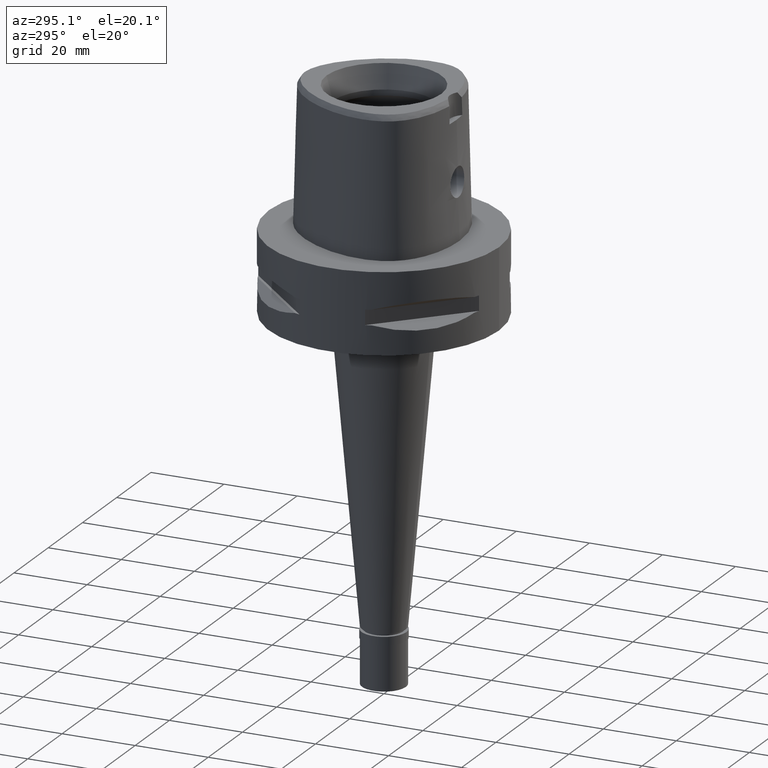
[diagram: clean part render]
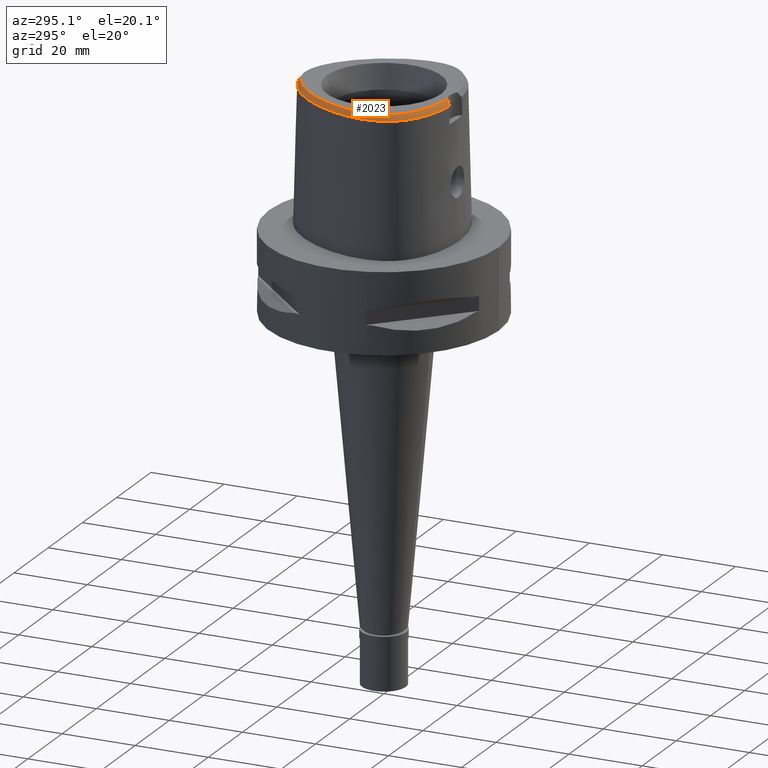
[diagram: same view with one face highlighted and labeled with its STEP entity id]
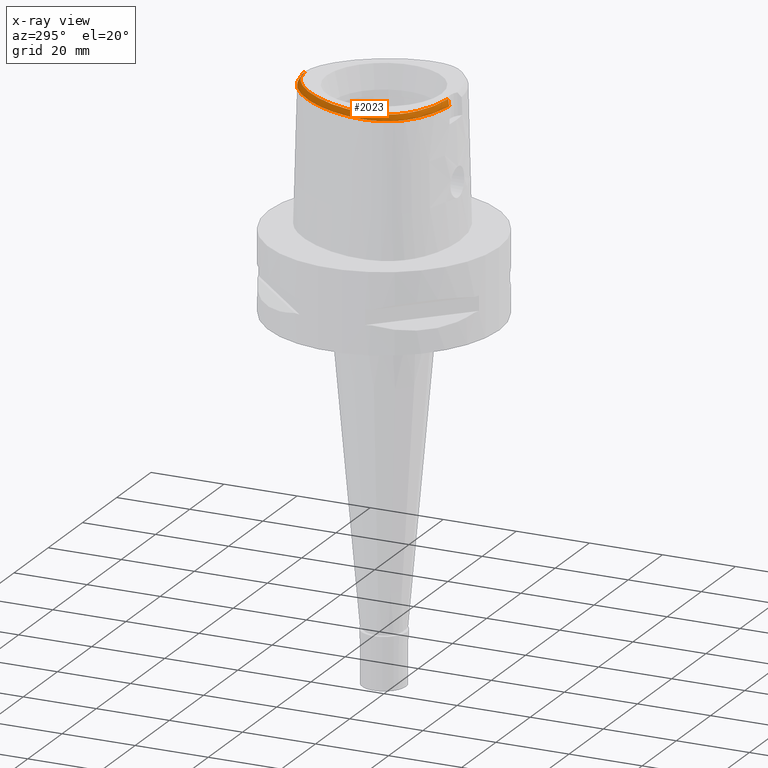
[diagram: x-ray of the same camera — body ghosted, the highlighted face saturated]
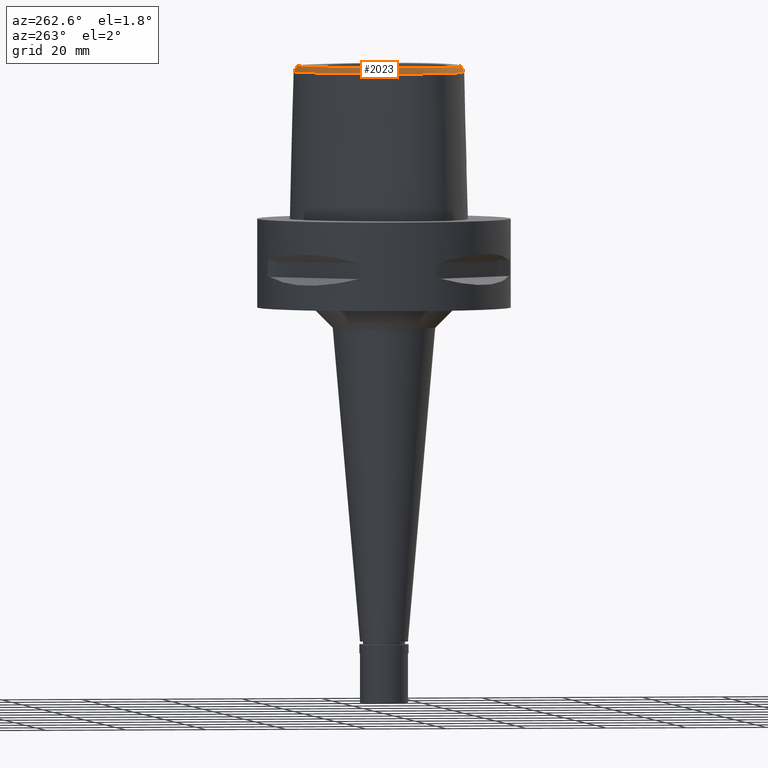
[diagram: same view with one face highlighted and labeled with its STEP entity id]
A machine part, auxiliary view. The second image highlights one B-rep face of the part: STEP entity #2023.
The next image is the same camera in x-ray: the body ghosted, the highlighted face saturated — about 0% of this face is hidden behind the body in this view.
A second angle (auxiliary view) of the same face is appended — the face is thin or edge-on in the first view.
In plain terms, the highlighted face is a freeform B-spline surface patch.
Its self-contained STEP definition (entity closure, byte-faithful):
#14 = CARTESIAN_POINT ( 'NONE',  ( -20.02675011674000416, -8.617982196456999588, 37.56878038597999847 ) ) ;
#37 = CARTESIAN_POINT ( 'NONE',  ( -19.86774351649000181, -10.92586949346000047, 36.33730872462999884 ) ) ;
#42 = CARTESIAN_POINT ( 'NONE',  ( 0.6289482029996000811, 22.28997476057999805, 36.95304439485000358 ) ) ;
#65 = CARTESIAN_POINT ( 'NONE',  ( -14.94067184435999884, -14.73642292221000005, 38.18451597091999616 ) ) ;
#90 = CARTESIAN_POINT ( 'NONE',  ( -18.22776533188999792, -11.52555474592000095, 38.18451611263000700 ) ) ;
#111 = CARTESIAN_POINT ( 'NONE',  ( -20.18507091242999962, -10.27080217816999941, 36.33730920690000232 ) ) ;
#125 = CARTESIAN_POINT ( 'NONE',  ( -20.09619618740940084, -10.23243843867939340, 36.52186244848000740 ) ) ;
#127 = CARTESIAN_POINT ( 'NONE',  ( -17.45119705494190754, -12.68365517585671043, 38.00000000000304823 ) ) ;
#136 = CARTESIAN_POINT ( 'NONE',  ( -16.28815286081999858, -13.68256091387000062, 38.18451610198000168 ) ) ;
#153 = CARTESIAN_POINT ( 'NONE',  ( -20.40060226222547257, -4.311417605381054230, 38.00000000000147793 ) ) ;
#166 = CARTESIAN_POINT ( 'NONE',  ( -3.777279559280000143, 22.07397702624999880, 36.33730948142999750 ) ) ;
#186 = CARTESIAN_POINT ( 'NONE',  ( -7.796513101705000004, 19.30717071940000196, 37.56878040368000171 ) ) ;
#198 = CARTESIAN_POINT ( 'NONE',  ( -2.682279906006999948, -18.78035848609999903, 38.00000000000000000 ) ) ;
#203 = CARTESIAN_POINT ( 'NONE',  ( -2.266354038267999638, -18.70221909909999880, 38.18451597308000345 ) ) ;
#207 = CARTESIAN_POINT ( 'NONE',  ( -9.687043812886001248, 17.90231720853999775, 37.56878079712999607 ) ) ;
#224 = CARTESIAN_POINT ( 'NONE',  ( -9.106433529538000116, -18.24421251244999809, 36.95304738533000233 ) ) ;
#228 = CARTESIAN_POINT ( 'NONE',  ( -9.165489689892000413, 19.23659463607999953, 36.33730848116000089 ) ) ;
#251 = CARTESIAN_POINT ( 'NONE',  ( -5.162650465159000390, 20.76744500909000024, 37.56878052391000011 ) ) ;
#279 = CARTESIAN_POINT ( 'NONE',  ( -20.61877110236000021, -5.294987516542999373, 37.56878065549000212 ) ) ;
#304 = CARTESIAN_POINT ( 'NONE',  ( -19.85526247840000025, 3.052097962454000335, 36.95304603679000621 ) ) ;
#324 = CARTESIAN_POINT ( 'NONE',  ( -21.00225135283999833, -3.250479583054000088, 36.95304468321999991 ) ) ;
#356 = CARTESIAN_POINT ( 'NONE',  ( -19.03637577663999991, 4.343604012840000195, 37.56878023039000425 ) ) ;
#362 = CARTESIAN_POINT ( 'NONE',  ( -7.655222869372381389, 19.09452359226542839, 37.99999999999960210 ) ) ;
#385 = CARTESIAN_POINT ( 'NONE',  ( -20.55906090346999804, -2.152374905768000168, 37.56878027646999385 ) ) ;
#407 = CARTESIAN_POINT ( 'NONE',  ( -14.15283256488999974, -15.25210397049000122, 38.18451602454999971 ) ) ;
#411 = CARTESIAN_POINT ( 'NONE',  ( 0.4008181513137999974, 21.93696204017000184, 37.56878039124000423 ) ) ;
#413 = CARTESIAN_POINT ( 'NONE',  ( -2.735698246183100313, 21.34559102902258232, 38.00000000000549960 ) ) ;
#432 = CARTESIAN_POINT ( 'NONE',  ( -15.35635954876999953, -15.33546644513000068, 36.95304532526000685 ) ) ;
#437 = CARTESIAN_POINT ( 'NONE',  ( -0.02532183057577000115, 21.58405771607999668, 38.18451604354000040 ) ) ;
#462 = CARTESIAN_POINT ( 'NONE',  ( -18.39632534895999783, -12.52233836712999882, 36.95304509468000020 ) ) ;
#468 = CARTESIAN_POINT ( 'NONE',  ( -1.446070426911000073, 22.58791698093000022, 36.33730842036999320 ) ) ;
#483 = CARTESIAN_POINT ( 'NONE',  ( -1.709898365991000259E-11, 22.56201468012000078, 36.52186680743999858 ) ) ;
#488 = CARTESIAN_POINT ( 'NONE',  ( -10.37740510969000063, -17.83102580118000091, 36.95304636610000415 ) ) ;
#500 = CARTESIAN_POINT ( 'NONE',  ( -2.376843896517655264, 22.39422508473721507, 36.52186244848000740 ) ) ;
#502 = CARTESIAN_POINT ( 'NONE',  ( -15.00295592774214803, -14.82617991125727563, 38.00000000000061817 ) ) ;
#508 = CARTESIAN_POINT ( 'NONE',  ( -13.28256881731999961, -15.75541261661999748, 38.18451608756000581 ) ) ;
#513 = CARTESIAN_POINT ( 'NONE',  ( -0.7115904893532000175, 22.65643130755000101, 36.33730877266000192 ) ) ;
#525 = CARTESIAN_POINT ( 'NONE',  ( -10.17136073855662204, -17.24644253469881505, 37.99999999999920419 ) ) ;
#537 = ORIENTED_EDGE ( 'NONE', *, *, #3183, .F. ) ;
#541 = CARTESIAN_POINT ( 'NONE',  ( -15.45953200273000050, 11.39847745766999942, 37.56878065731999783 ) ) ;
#557 = CARTESIAN_POINT ( 'NONE',  ( -4.691536587948999859, -18.45908343680000030, 38.18451607663000402 ) ) ;
#562 = CARTESIAN_POINT ( 'NONE',  ( -16.00433262329999806, 9.852643034111000730, 38.18451607808000148 ) ) ;
#572 = CARTESIAN_POINT ( 'NONE',  ( -20.27898581532152278, -6.181921586189995210, 38.00000000000031974 ) ) ;
#582 = CARTESIAN_POINT ( 'NONE',  ( -4.215658479161999317, 20.76450822006999886, 38.18451608323000102 ) ) ;
#593 = CARTESIAN_POINT ( 'NONE',  ( -19.55745547456383449, -11.29150218116444471, 36.52186244848000740 ) ) ;
#596 = CARTESIAN_POINT ( 'NONE',  ( -20.30498420086961886, -2.177378896258027829, 38.00000000000496669 ) ) ;
#606 = CARTESIAN_POINT ( 'NONE',  ( -11.15460772716000015, 17.59209845178000009, 36.33731309594000436 ) ) ;
#621 = CARTESIAN_POINT ( 'NONE',  ( -8.578220530113664921, 18.44656747109426576, 37.99999999999955236 ) ) ;
#635 = CARTESIAN_POINT ( 'NONE',  ( -10.66208797857999890, 17.05454986079000079, 37.56878145039999595 ) ) ;
#661 = CARTESIAN_POINT ( 'NONE',  ( -19.53853592720999899, 1.493083719539999965, 38.18451559889000180 ) ) ;
#672 = CARTESIAN_POINT ( 'NONE',  ( -3.637738201363999835, -19.56971413236999879, 36.52186244848000030 ) ) ;
#684 = CARTESIAN_POINT ( 'NONE',  ( -19.83485565970000053, 0.2024166197235000020, 38.18451568417000175 ) ) ;
#714 = CARTESIAN_POINT ( 'NONE',  ( -19.89160911299999768, 1.583749715944999803, 37.56878151751000416 ) ) ;
#737 = CARTESIAN_POINT ( 'NONE',  ( -18.49281944676999956, 7.522270715400999563, 36.33731006739999714 ) ) ;
#742 = CARTESIAN_POINT ( 'NONE',  ( -3.475593359606999682E-11, 21.68728795390000030, 38.00000000000000000 ) ) ;
#765 = CARTESIAN_POINT ( 'NONE',  ( -16.94264144185999754, 10.41425996445999935, 36.33730903685999891 ) ) ;
#796 = CARTESIAN_POINT ( 'NONE',  ( -17.62923874555000125, -13.92538932617999947, 36.33730892563999504 ) ) ;
#820 = CARTESIAN_POINT ( 'NONE',  ( -16.85949181368999916, -13.14831067806999876, 38.18451609040999983 ) ) ;
#845 = CARTESIAN_POINT ( 'NONE',  ( -17.91313027996000073, -13.09711318699999971, 36.95304474130999495 ) ) ;
#850 = CARTESIAN_POINT ( 'NONE',  ( -1.310091734630000060, 21.50257447207999917, 38.18451614649000447 ) ) ;
#876 = CARTESIAN_POINT ( 'NONE',  ( -15.65059932293999800, -14.21235990975000085, 38.18451606413000121 ) ) ;
#892 = CARTESIAN_POINT ( 'NONE',  ( -4.467522189394197873, -19.48130287050580733, 36.52186244848000740 ) ) ;
#899 = CARTESIAN_POINT ( 'NONE',  ( -17.36978564376000023, -12.61078706780999958, 38.18451607384000113 ) ) ;
#913 = CARTESIAN_POINT ( 'NONE',  ( -15.71788912668889004, -14.29843101566080676, 37.99999999999270983 ) ) ;
#918 = CARTESIAN_POINT ( 'NONE',  ( -6.167725899783000010, -18.21104073861000217, 38.18451610019999976 ) ) ;
#934 = CARTESIAN_POINT ( 'NONE',  ( -21.07430010673008880, -0.4408303445193489933, 36.52186244848000740 ) ) ;
#936 = CARTESIAN_POINT ( 'NONE',  ( -19.94188961899395807, 0.2242544969876888727, 37.99999999999960920 ) ) ;
#943 = CARTESIAN_POINT ( 'NONE',  ( -2.340175740112999669, -19.79288029884999744, 36.33730998296000081 ) ) ;
#950 = CARTESIAN_POINT ( 'NONE',  ( -15.76311249015000371, 11.60024433661999943, 36.95304534766999893 ) ) ;
#961 = CARTESIAN_POINT ( 'NONE',  ( -19.28591707036773784, -9.869682450886939407, 37.99999999999823785 ) ) ;
#966 = CARTESIAN_POINT ( 'NONE',  ( -2.290961272215999767, -19.06577283234999953, 37.56878064304000020 ) ) ;
#970 = CARTESIAN_POINT ( 'NONE',  ( -16.62987183566999860, 10.22705432100999978, 36.95304471725999917 ) ) ;
#988 = CARTESIAN_POINT ( 'NONE',  ( -3.448139676035999912, 21.03090601481999755, 38.18451602873000184 ) ) ;
#995 = CARTESIAN_POINT ( 'NONE',  ( -2.682279906006999948, -18.78035848609999903, 38.00000000000000000 ) ) ;
#998 = B_SPLINE_CURVE_WITH_KNOTS ( 'NONE', 3,
 ( #198, #4811, #2089, #1737, #1380, #1291, #3198, #525, #3269, #3660, #4394, #3241, #502, #913, #3220, #3288, #127, #3617, #2034, #3597, #2904, #961, #2489, #2823, #2506, #2443, #572, #3968, #153, #4038, #596, #4745, #936, #1311, #4436, #2843, #2884, #2110, #4768, #4371, #2471, #3995, #4790, #1359, #4412, #4952, #1121, #621, #362, #4065, #3455, #1776, #4641, #3859, #413, #4834, #1495, #1945, #2155, #742 ),
 .UNSPECIFIED., .F., .F.,
 ( 4, 1, 1, 1, 1, 1, 1, 1, 1, 1, 1, 1, 1, 1, 1, 1, 1, 1, 1, 1, 1, 1, 1, 1, 1, 1, 1, 1, 1, 1, 1, 1, 1, 1, 1, 1, 1, 1, 1, 1, 1, 1, 1, 1, 1, 1, 1, 1, 1, 1, 1, 1, 1, 1, 1, 1, 1, 4 ),
 ( 0.0000000000000000000, 0.005420919554200098744, 0.02318126027639999531, 0.04094160099879995407, 0.05870194172099996166, 0.07646228244330000035, 0.09422262316550000794, 0.1119829638877999356, 0.1297433046099999432, 0.1475036453321999508, 0.1652639860544999895, 0.1830243267768000281, 0.2007846674991000668, 0.2185450082212999634, 0.2363053489436000021, 0.2540656896658000097, 0.2718260303881000484, 0.2895863711103000560, 0.3073467118325999836, 0.3251070525547999912, 0.3428673932771000299, 0.3606277339994000686, 0.3783880747216000762, 0.3961484154438998928, 0.4139087561661000114, 0.4316690968884000501, 0.4494294376106000577, 0.4671897783328999854, 0.4849501190552000240, 0.5027104597774000316, 0.5204708004996999593, 0.5382311412219000779, 0.5559914819442000056, 0.5737518226664000132, 0.5915121633886999408, 0.6092725041108999484, 0.6270328448331999871, 0.6447931855555000258, 0.6625535262777000334, 0.6803138669999999610, 0.6980742077221999686, 0.7158345484445000073, 0.7335948891667000149, 0.7513552298890000536, 0.7691155706112000612, 0.7868759113336000199, 0.8046362520558000275, 0.8223965927780999552, 0.8401569335002999628, 0.8579172742224999704, 0.8756776149448000091, 0.8934379556670000166, 0.9111982963893099363, 0.9289586371115600150, 0.9467189778338299666, 0.9644793185560800453, 0.9822396592783400049, 1.000000000000000000 ),
 .UNSPECIFIED. ) ;
#1008 = CARTESIAN_POINT ( 'NONE',  ( -4.846286384608999853, -19.54163353081000309, 36.33730904987999821 ) ) ;
#1015 = CARTESIAN_POINT ( 'NONE',  ( -14.25602107928999907, 12.48290860538000047, 38.18451599888999937 ) ) ;
#1040 = CARTESIAN_POINT ( 'NONE',  ( -17.11147581288999930, 8.638424120443000120, 37.56878049479000481 ) ) ;
#1064 = CARTESIAN_POINT ( 'NONE',  ( -21.34638171082999847, -5.342155950168000267, 36.33731003096999501 ) ) ;
#1088 = CARTESIAN_POINT ( 'NONE',  ( -20.25496579812000064, -5.271403299730999414, 38.18451596775000212 ) ) ;
#1116 = VERTEX_POINT ( 'NONE', #4243 ) ;
#1118 = CARTESIAN_POINT ( 'NONE',  ( -20.04339159833000039, -7.004779408297000742, 38.18451610098000515 ) ) ;
#1121 = CARTESIAN_POINT ( 'NONE',  ( -9.524337278001938856, 17.70558492630402725, 37.99999999999589306 ) ) ;
#1141 = CARTESIAN_POINT ( 'NONE',  ( -19.67816131302000215, -8.511125492947000382, 38.18451608308000544 ) ) ;
#1169 = CARTESIAN_POINT ( 'NONE',  ( -19.20622906095000104, -11.35704442103999945, 36.95304483048000321 ) ) ;
#1174 = CARTESIAN_POINT ( 'NONE',  ( -3.637738201363999835, -19.56971413236999879, 36.52186244848000030 ) ) ;
#1200 = CARTESIAN_POINT ( 'NONE',  ( -14.53447828968000088, -15.87337238872999912, 36.95304502092999854 ) ) ;
#1224 = CARTESIAN_POINT ( 'NONE',  ( -19.51911299842000247, -9.973713021282000213, 37.56878044176999509 ) ) ;
#1226 = CARTESIAN_POINT ( 'NONE',  ( 0.5885283275144000958, 21.56237285516000313, 38.18451613489000351 ) ) ;
#1249 = CARTESIAN_POINT ( 'NONE',  ( -12.32452952721000017, -16.24233026961999826, 38.18451610107000249 ) ) ;
#1278 = CARTESIAN_POINT ( 'NONE',  ( -18.89444140915999881, -11.16800349480999976, 37.56878044430000330 ) ) ;
#1282 = CARTESIAN_POINT ( 'NONE',  ( -0.02770009181525000252, 22.67783618535000301, 36.33730934802999712 ) ) ;
#1291 = CARTESIAN_POINT ( 'NONE',  ( -7.599370508970504368, -18.01010694911206400, 38.00000000000024158 ) ) ;
#1302 = CARTESIAN_POINT ( 'NONE',  ( 0.4278957466941000209, 22.66533756051999760, 36.33730901205999686 ) ) ;
#1310 = CARTESIAN_POINT ( 'NONE',  ( -3.637738201363999835, -19.56971413236999879, 36.52186244848000030 ) ) ;
#1311 = CARTESIAN_POINT ( 'NONE',  ( -19.64434054693262865, 1.520253387635620346, 37.99999999999277378 ) ) ;
#1324 = CARTESIAN_POINT ( 'NONE',  ( -13.17448266286000091, 15.54791473446999994, 36.33730990623000423 ) ) ;
#1334 = CARTESIAN_POINT ( 'NONE',  ( -17.27359245833669377, 9.972912913898941412, 36.52186244848000740 ) ) ;
#1344 = CARTESIAN_POINT ( 'NONE',  ( -6.305547216494999496, -18.92693807178999776, 36.95304459167999056 ) ) ;
#1350 = CARTESIAN_POINT ( 'NONE',  ( -13.31954637369999972, 13.69384002444999915, 38.18451613796000288 ) ) ;
#1359 = CARTESIAN_POINT ( 'NONE',  ( -12.44116897271302058, 14.89128547409752912, 38.00000000000346034 ) ) ;
#1370 = CARTESIAN_POINT ( 'NONE',  ( -6.345974903775999820, 21.00668178508000139, 36.33730966571999943 ) ) ;
#1380 = CARTESIAN_POINT ( 'NONE',  ( -6.188376196366293769, -18.31830638231481245, 37.99999999999499778 ) ) ;
#1391 = CARTESIAN_POINT ( 'NONE',  ( -2.886817212813999944, 21.94682555607999674, 36.95304508022999812 ) ) ;
#1415 = CARTESIAN_POINT ( 'NONE',  ( -7.074171754842000226, 20.18857126524999757, 36.95304470812999398 ) ) ;
#1439 = CARTESIAN_POINT ( 'NONE',  ( -17.43274724349999971, 8.810631904323999564, 36.95304495307000536 ) ) ;
#1460 = CARTESIAN_POINT ( 'NONE',  ( -20.05211925655999750, -1.026048686198000048, 38.18451602241000131 ) ) ;
#1488 = CARTESIAN_POINT ( 'NONE',  ( -21.02045118696999992, -4.317202866415999374, 36.95304481289000620 ) ) ;
#1495 = CARTESIAN_POINT ( 'NONE',  ( -1.323674540694070645, 21.61098849315821724, 38.00000000000159162 ) ) ;
#1517 = CARTESIAN_POINT ( 'NONE',  ( -20.58669112056999850, -7.955873371742000266, 36.95304462263000289 ) ) ;
#1541 = CARTESIAN_POINT ( 'NONE',  ( -20.37533892045000172, -8.724838899966998795, 36.95304468887999860 ) ) ;
#1570 = CARTESIAN_POINT ( 'NONE',  ( -19.51801671275000061, -11.54608534727000091, 36.33730921666000313 ) ) ;
#1598 = CARTESIAN_POINT ( 'NONE',  ( -11.41502885936999867, -17.04407600737999928, 37.56878032552000235 ) ) ;
#1601 = CARTESIAN_POINT ( 'NONE',  ( -0.6430528350362999523, 21.56473394456000392, 38.18451610739000301 ) ) ;
#1625 = CARTESIAN_POINT ( 'NONE',  ( -18.18480259805999921, -13.34027624660000022, 36.33730907505000118 ) ) ;
#1650 = CARTESIAN_POINT ( 'NONE',  ( -17.37265643493000056, -13.66636311014999983, 36.95304464722999427 ) ) ;
#1656 = FACE_OUTER_BOUND ( 'NONE', #3503, .T. ) ;
#1674 = CARTESIAN_POINT ( 'NONE',  ( -14.72530115208000012, -16.18400659783999984, 36.33730951911999796 ) ) ;
#1690 = CARTESIAN_POINT ( 'NONE',  ( -20.67704215115907473, -8.734985316449373371, 36.52186244848000740 ) ) ;
#1701 = CARTESIAN_POINT ( 'NONE',  ( -5.460880318711000214, 21.43281461068000127, 36.33730952362999744 ) ) ;
#1725 = CARTESIAN_POINT ( 'NONE',  ( -7.998260510379001431, 19.61080817651999908, 36.95304473186000394 ) ) ;
#1737 = CARTESIAN_POINT ( 'NONE',  ( -4.706994425064723764, -18.56721852572553644, 38.00000000000257216 ) ) ;
#1743 = CARTESIAN_POINT ( 'NONE',  ( -7.746079046130000201, -18.61230806486999967, 36.95304660629000182 ) ) ;
#1751 = CARTESIAN_POINT ( 'NONE',  ( -4.475283853647000321, 21.44588580165000025, 36.95304468801000297 ) ) ;
#1768 = CARTESIAN_POINT ( 'NONE',  ( -12.63135418743999949, 15.06158254962999976, 37.56878062313999322 ) ) ;
#1776 = CARTESIAN_POINT ( 'NONE',  ( -5.058220461389586475, 20.53445508814830234, 37.99999999999654676 ) ) ;
#1788 = CARTESIAN_POINT ( 'NONE',  ( -2.975693348475999755, 22.30042380111000000, 36.33730961329000309 ) ) ;
#1813 = CARTESIAN_POINT ( 'NONE',  ( -17.75401867412000101, 8.982839688204999007, 36.33730941134999171 ) ) ;
#1842 = CARTESIAN_POINT ( 'NONE',  ( -20.92185538336999784, -2.116671869510000192, 36.95304442300000147 ) ) ;
#1865 = CARTESIAN_POINT ( 'NONE',  ( -20.98257640658999890, -5.318571733355000219, 36.95304534323000212 ) ) ;
#1891 = CARTESIAN_POINT ( 'NONE',  ( -19.87801058345000271, -7.784172258536999678, 38.18451609475000197 ) ) ;
#1922 = CARTESIAN_POINT ( 'NONE',  ( -18.81457497261000000, 5.910995720565000333, 36.95304491785000067 ) ) ;
#1943 = CARTESIAN_POINT ( 'NONE',  ( -20.12981641206000205, -9.445478659415998735, 36.95304499952000299 ) ) ;
#1945 = CARTESIAN_POINT ( 'NONE',  ( -0.6498990081535668262, 21.67378274708581287, 37.99999999999869260 ) ) ;
#1964 = CARTESIAN_POINT ( 'NONE',  ( -12.79301852780999837, -17.23055219409000216, 36.33730882959000041 ) ) ;
#1968 = CARTESIAN_POINT ( 'NONE',  ( -0.02690733806876000056, 22.31324336225999971, 36.95304491319999585 ) ) ;
#1996 = CARTESIAN_POINT ( 'NONE',  ( -19.54462228230000065, -10.75693248910999955, 36.95304452066000067 ) ) ;
#2001 = CARTESIAN_POINT ( 'NONE',  ( -2.064220249234000271, 21.75375259345999979, 37.56878038868000402 ) ) ;
#2019 = CARTESIAN_POINT ( 'NONE',  ( -15.87514741396999973, -14.49958176875999882, 37.56878043022999947 ) ) ;
#2023 = ADVANCED_FACE ( 'NONE', ( #1656 ), #3251, .F. ) ;
#2032 = CARTESIAN_POINT ( 'NONE',  ( -16.39211280191441489, -14.95758113318704652, 36.52186244848000740 ) ) ;
#2034 = CARTESIAN_POINT ( 'NONE',  ( -18.31748213707268746, -11.58791794388078067, 37.99999999999749889 ) ) ;
#2042 = CARTESIAN_POINT ( 'NONE',  ( -11.27635179948000044, -16.70694117596999817, 38.18451610894000225 ) ) ;
#2076 = CARTESIAN_POINT ( 'NONE',  ( -2.198999323874000211, 22.47039607780000026, 36.33730900220999871 ) ) ;
#2087 = CARTESIAN_POINT ( 'NONE',  ( -7.300578999876284669, -19.07170748891975265, 36.52186244848000740 ) ) ;
#2089 = CARTESIAN_POINT ( 'NONE',  ( -3.522896839653986589, -18.70811514173706058, 38.00000000000088107 ) ) ;
#2094 = CARTESIAN_POINT ( 'NONE',  ( -4.743119853501999827, -18.81993346814000034, 37.56878040104999883 ) ) ;
#2099 = CARTESIAN_POINT ( 'NONE',  ( -2.797941077152000133, 21.59322731105000059, 37.56878054717000026 ) ) ;
#2110 = CARTESIAN_POINT ( 'NONE',  ( -17.60426951086655478, 7.098774535281628495, 37.99999999999333511 ) ) ;
#2115 = CARTESIAN_POINT ( 'NONE',  ( -7.659796773679000026, -18.25814134938000066, 37.56878117571999809 ) ) ;
#2122 = CARTESIAN_POINT ( 'NONE',  ( -8.948009362102000708, 18.94402799276000238, 36.95304436735000309 ) ) ;
#2129 = CARTESIAN_POINT ( 'NONE',  ( -21.14970188364185333, -6.717195958887213436, 36.52186244848000740 ) ) ;
#2146 = CARTESIAN_POINT ( 'NONE',  ( -5.013535538383999679, 20.43476020829999840, 38.18451602404999790 ) ) ;
#2155 = CARTESIAN_POINT ( 'NONE',  ( -0.2181979014509072279, 21.68728795389177222, 37.99999999999901945 ) ) ;
#2157 = CARTESIAN_POINT ( 'NONE',  ( -2.682279906006999948, -18.78035848609999903, 38.00000000000000000 ) ) ;
#2167 = CARTESIAN_POINT ( 'NONE',  ( -14.84335704184999827, 12.91479436242000034, 36.95304516652999638 ) ) ;
#2189 = CARTESIAN_POINT ( 'NONE',  ( -20.54920671724000059, 0.3481639210567000209, 36.95304695229000203 ) ) ;
#2203 = CARTESIAN_POINT ( 'NONE',  ( -3.014271304879253766, -18.99139391534837173, 37.59976690302464419 ) ) ;
#2216 = CARTESIAN_POINT ( 'NONE',  ( -20.90638224601000061, 0.4210375717233000303, 36.33731258633999772 ) ) ;
#2221 = EDGE_CURVE ( 'NONE', #2639, #2689, #998, .T. ) ;
#2239 = CARTESIAN_POINT ( 'NONE',  ( -20.17053621135000085, -6.168705337529999611, 38.18451602836000092 ) ) ;
#2256 = B_SPLINE_CURVE_WITH_KNOTS ( 'NONE', 3,
 ( #2157, #2203, #4438, #672 ),
 .UNSPECIFIED., .F., .F.,
 ( 4, 4 ),
 ( 0.0000000000000000000, 1.000000000000000000 ),
 .UNSPECIFIED. ) ;
#2264 = CARTESIAN_POINT ( 'NONE',  ( -18.47843640201000071, 5.769986140440999556, 37.56878048027999739 ) ) ;
#2292 = CARTESIAN_POINT ( 'NONE',  ( -20.89433536628999732, -6.256911372971999619, 36.95304499934000120 ) ) ;
#2321 = CARTESIAN_POINT ( 'NONE',  ( -16.76982717806000167, -14.22999593724999912, 36.95304458165999506 ) ) ;
#2343 = CARTESIAN_POINT ( 'NONE',  ( -16.52899001944000190, -13.95627842556000076, 37.56878034182000192 ) ) ;
#2347 = CARTESIAN_POINT ( 'NONE',  ( 0.6491581407422000183, 22.65377571329000261, 36.33730852483000007 ) ) ;
#2372 = CARTESIAN_POINT ( 'NONE',  ( -17.11607412431000341, -13.40733689410999929, 37.56878036882000060 ) ) ;
#2375 = CARTESIAN_POINT ( 'NONE',  ( -1.355417965390000257, 21.86435530836999774, 37.56878023777999687 ) ) ;
#2401 = VERTEX_POINT ( 'NONE', #1174 ) ;
#2403 = CARTESIAN_POINT ( 'NONE',  ( -10.13504734495000115, -17.14341520066000157, 38.18451578748000230 ) ) ;
#2420 = CARTESIAN_POINT ( 'NONE',  ( -10.91891098964903506, -18.03046406390872392, 36.52186244848000740 ) ) ;
#2429 = CARTESIAN_POINT ( 'NONE',  ( -12.48069252740999957, -16.57173757778000223, 37.56878034390999943 ) ) ;
#2443 = CARTESIAN_POINT ( 'NONE',  ( -20.15090095364636369, -7.024227649787396999, 37.99999999999884182 ) ) ;
#2449 = CARTESIAN_POINT ( 'NONE',  ( -3.511413214990000142, -18.59950890536000045, 38.18451597991000313 ) ) ;
#2456 = CARTESIAN_POINT ( 'NONE',  ( -6.889067950727000067, 19.87450140290000178, 37.56878039389999913 ) ) ;
#2466 = CARTESIAN_POINT ( 'NONE',  ( -10.15538788053308927, 18.47129535094024178, 36.52186244848000740 ) ) ;
#2471 = CARTESIAN_POINT ( 'NONE',  ( -15.24692477332533258, 11.25717358966638493, 38.00000000000024158 ) ) ;
#2477 = CARTESIAN_POINT ( 'NONE',  ( -2.084278638321999555, -19.07849178945999924, 37.56878062897999371 ) ) ;
#2480 = CARTESIAN_POINT ( 'NONE',  ( -9.919371421421999457, 18.18322996158999771, 36.95304568711999593 ) ) ;
#2489 = CARTESIAN_POINT ( 'NONE',  ( -19.54919922641915520, -9.228169790567891440, 38.00000000000300560 ) ) ;
#2499 = CARTESIAN_POINT ( 'NONE',  ( -8.513048706522997833, 18.35889470611000007, 38.18451613974000480 ) ) ;
#2506 = CARTESIAN_POINT ( 'NONE',  ( -19.98419490691658140, -7.809898894995987106, 37.99999999999893419 ) ) ;
#2516 = CARTESIAN_POINT ( 'NONE',  ( -5.843335212882999841, 20.03532601981999761, 38.18451600829000370 ) ) ;
#2540 = CARTESIAN_POINT ( 'NONE',  ( -7.573514501227999851, -17.90397463388999810, 38.18451574515000146 ) ) ;
#2547 = CARTESIAN_POINT ( 'NONE',  ( -11.90659073255999978, 16.36300070872000134, 36.95304714719999595 ) ) ;
#2567 = CARTESIAN_POINT ( 'NONE',  ( -20.24468229879999726, 1.674415712350000085, 36.95304743612000209 ) ) ;
#2590 = CARTESIAN_POINT ( 'NONE',  ( -18.69385703248000041, 4.218880256005000717, 38.18451614964000385 ) ) ;
#2616 = CARTESIAN_POINT ( 'NONE',  ( -16.79020438227999890, 8.466216336563000766, 38.18451603652000159 ) ) ;
#2639 = VERTEX_POINT ( 'NONE', #995 ) ;
#2640 = CARTESIAN_POINT ( 'NONE',  ( -20.41255328583999784, -0.9714865389024001097, 37.56878052776000487 ) ) ;
#2664 = CARTESIAN_POINT ( 'NONE',  ( -20.19203118847000056, 0.2752902703901000114, 37.56878131823000189 ) ) ;
#2689 = VERTEX_POINT ( 'NONE', #3407 ) ;
#2690 = CARTESIAN_POINT ( 'NONE',  ( -18.68231075227999938, -12.74850420745000079, 36.33730963623999344 ) ) ;
#2722 = CARTESIAN_POINT ( 'NONE',  ( -13.62968001545000085, -16.39659861328000190, 36.95304466342999916 ) ) ;
#2746 = CARTESIAN_POINT ( 'NONE',  ( -19.12592833198999998, -12.14987832567999959, 36.33730872542999890 ) ) ;
#2751 = CARTESIAN_POINT ( 'NONE',  ( -0.6887446045809000328, 22.29253218655000168, 36.95304455089999607 ) ) ;
#2775 = CARTESIAN_POINT ( 'NONE',  ( -12.63685552760999897, -16.90114488592999820, 36.95304458675000348 ) ) ;
#2805 = CARTESIAN_POINT ( 'NONE',  ( -17.01066433668000144, -14.50371344893999925, 36.33730882150000241 ) ) ;
#2813 = CARTESIAN_POINT ( 'NONE',  ( -0.6658987198086000481, 21.92863306555999614, 37.56878032915000176 ) ) ;
#2823 = CARTESIAN_POINT ( 'NONE',  ( -19.78262210840563284, -8.543146992552985708, 38.00000000000400036 ) ) ;
#2828 = CARTESIAN_POINT ( 'NONE',  ( -8.899018189429998671, -17.54527911743999979, 38.18451560785000254 ) ) ;
#2843 = CARTESIAN_POINT ( 'NONE',  ( -18.79649882724708476, 4.256255933891022636, 37.99999999999310063 ) ) ;
#2848 = CARTESIAN_POINT ( 'NONE',  ( -9.210141199591999950, -18.59367920995000034, 36.33731327406999867 ) ) ;
#2853 = CARTESIAN_POINT ( 'NONE',  ( -12.90291842515000020, 15.30474864205000074, 36.95304526468000006 ) ) ;
#2864 = CARTESIAN_POINT ( 'NONE',  ( -7.108589416785442872, 20.52412325828244377, 36.52186244848000740 ) ) ;
#2872 = CARTESIAN_POINT ( 'NONE',  ( -2.061903742976999965, -18.71480070618999747, 38.18451597909999862 ) ) ;
#2877 = CARTESIAN_POINT ( 'NONE',  ( -16.31710222947999966, 10.03984867756000021, 37.56878039766999677 ) ) ;
#2884 = CARTESIAN_POINT ( 'NONE',  ( -18.24302769441047545, 5.671232572958810003, 37.99999999999752731 ) ) ;
#2885 = DIRECTION ( 'NONE',  ( -1.028023087690013303E-11, -0.5092834681090075977, 0.8605988316927122295 ) ) ;
#2889 = CARTESIAN_POINT ( 'NONE',  ( -4.794703119054999796, -19.18078349946999950, 36.95304472546000341 ) ) ;
#2892 = ORIENTED_EDGE ( 'NONE', *, *, #2221, .T. ) ;
#2894 = CARTESIAN_POINT ( 'NONE',  ( -7.259275558956000296, 20.50264112760000046, 36.33730902236000304 ) ) ;
#2904 = CARTESIAN_POINT ( 'NONE',  ( -18.99520880204379836, -10.46968343926177347, 37.99999999999787548 ) ) ;
#2910 = CARTESIAN_POINT ( 'NONE',  ( -2.658654439054999763, -19.03974528279999845, 37.56878065663999422 ) ) ;
#2918 = CARTESIAN_POINT ( 'NONE',  ( -4.345471166404999863, 21.10519701085999955, 37.56878038561999489 ) ) ;
#2945 = CARTESIAN_POINT ( 'NONE',  ( -9.454716204350999575, 17.62140445549000134, 38.18451590713999622 ) ) ;
#2968 = CARTESIAN_POINT ( 'NONE',  ( -19.50708493019000400, 2.944161961941999639, 37.56878094116000000 ) ) ;
#2991 = CARTESIAN_POINT ( 'NONE',  ( -17.83471531137999833, 7.208608448155000126, 37.56878066493999313 ) ) ;
#3013 = ORIENTED_EDGE ( 'NONE', *, *, #3641, .F. ) ;
#3017 = CARTESIAN_POINT ( 'NONE',  ( -20.53243578881999909, -6.212808355251000059, 37.56878051385000106 ) ) ;
#3046 = CARTESIAN_POINT ( 'NONE',  ( -20.94103138912999640, -8.041723928345000161, 36.33730888657000691 ) ) ;
#3071 = CARTESIAN_POINT ( 'NONE',  ( -19.15890738198000065, 2.836225961430999920, 38.18451584551999645 ) ) ;
#3099 = CARTESIAN_POINT ( 'NONE',  ( -18.82654066529000048, -11.94177046576000123, 36.95304452115999538 ) ) ;
#3129 = CARTESIAN_POINT ( 'NONE',  ( -18.52715299859000098, -11.73366260584000109, 37.56878031690000341 ) ) ;
#3154 = CARTESIAN_POINT ( 'NONE',  ( -16.09969550499999968, -14.78680362775999946, 36.95304479632000039 ) ) ;
#3178 = CARTESIAN_POINT ( 'NONE',  ( -15.56420340097000121, -15.63498820659000188, 36.33731000243000153 ) ) ;
#3181 = CARTESIAN_POINT ( 'NONE',  ( 0.4143569490038999659, 22.30114980035000016, 36.95304470165000055 ) ) ;
#3183 = EDGE_CURVE ( 'NONE', #2401, #1116, #4177, .T. ) ;
#3198 = CARTESIAN_POINT ( 'NONE',  ( -8.930096025510360747, -17.65000298921415478, 37.99999999999897682 ) ) ;
#3203 = CARTESIAN_POINT ( 'NONE',  ( -2.715837063985999666, -19.76628898871000217, 36.33731003540999893 ) ) ;
#3220 = CARTESIAN_POINT ( 'NONE',  ( -16.36032397153683959, -13.76458520345434167, 38.00000000000695621 ) ) ;
#3229 = CARTESIAN_POINT ( 'NONE',  ( -8.730529034312999315, 18.65146134943000078, 37.56878025354999551 ) ) ;
#3239 = CARTESIAN_POINT ( 'NONE',  ( -19.88562090098784552, 4.345879983792252155, 36.52186244848000740 ) ) ;
#3241 = CARTESIAN_POINT ( 'NONE',  ( -14.21001600787627339, -15.34519100086062515, 37.99999999999609912 ) ) ;
#3251 = B_SPLINE_SURFACE_WITH_KNOTS ( 'NONE', 3, 3, ( 
 ( #1226, #3956, #42, #2347 ),
 ( #3881, #411, #3181, #1302 ),
 ( #437, #4718, #1968, #1282 ),
 ( #1601, #2813, #2751, #513 ),
 ( #850, #2375, #3909, #468 ),
 ( #3581, #2001, #3536, #2076 ),
 ( #4449, #2099, #1391, #1788 ),
 ( #988, #4024, #3696, #166 ),
 ( #582, #2918, #1751, #4777 ),
 ( #2146, #251, #3980, #1701 ),
 ( #2516, #3646, #4049, #1370 ),
 ( #3607, #2456, #1415, #2894 ),
 ( #3626, #186, #1725, #4800 ),
 ( #2499, #3229, #2122, #228 ),
 ( #2945, #207, #2480, #3326 ),
 ( #4423, #635, #3279, #606 ),
 ( #3254, #4755, #2547, #3671 ),
 ( #4821, #1768, #2853, #1324 ),
 ( #1350, #4403, #4380, #3302 ),
 ( #1015, #4078, #2167, #4852 ),
 ( #4483, #541, #950, #4005 ),
 ( #562, #2877, #970, #765 ),
 ( #2616, #1040, #1439, #1813 ),
 ( #4895, #2991, #3357, #737 ),
 ( #4151, #2264, #1922, #4874 ),
 ( #2590, #356, #4200, #3401 ),
 ( #3071, #2968, #304, #4921 ),
 ( #661, #714, #2567, #4124 ),
 ( #684, #2664, #2189, #2216 ),
 ( #1460, #2640, #3771, #4100 ),
 ( #4534, #385, #1842, #4584 ),
 ( #4950, #4562, #324, #3380 ),
 ( #3750, #4508, #1488, #3721 ),
 ( #1088, #279, #1865, #1064 ),
 ( #2239, #3017, #2292, #3827 ),
 ( #1118, #3450, #4174, #3796 ),
 ( #1891, #3426, #1517, #3046 ),
 ( #1141, #14, #1541, #3532 ),
 ( #3902, #3474, #1943, #4606 ),
 ( #4635, #1224, #4708, #111 ),
 ( #3854, #3504, #1996, #37 ),
 ( #4336, #1278, #1169, #1570 ),
 ( #90, #3129, #3099, #2746 ),
 ( #4282, #4259, #462, #2690 ),
 ( #899, #3555, #845, #1625 ),
 ( #820, #2372, #1650, #796 ),
 ( #136, #2343, #2321, #2805 ),
 ( #876, #2019, #3154, #4232 ),
 ( #65, #3952, #432, #3178 ),
 ( #407, #3575, #1200, #1674 ),
 ( #508, #3878, #2722, #4681 ),
 ( #1249, #2429, #2775, #1964 ),
 ( #2042, #1598, #4659, #4308 ),
 ( #2403, #3928, #488, #4443 ),
 ( #2828, #4043, #224, #2848 ),
 ( #2540, #2115, #1743, #4772 ),
 ( #918, #4354, #1344, #3667 ),
 ( #557, #2094, #2889, #1008 ),
 ( #2449, #3603, #3275, #4398 ),
 ( #3644, #2910, #3295, #3203 ),
 ( #203, #966, #4375, #943 ),
 ( #2872, #2477, #4019, #4730 ) ),
 .UNSPECIFIED., .F., .F., .F.,
 ( 4, 1, 1, 1, 1, 1, 1, 1, 1, 1, 1, 1, 1, 1, 1, 1, 1, 1, 1, 1, 1, 1, 1, 1, 1, 1, 1, 1, 1, 1, 1, 1, 1, 1, 1, 1, 1, 1, 1, 1, 1, 1, 1, 1, 1, 1, 1, 1, 1, 1, 1, 1, 1, 1, 1, 1, 1, 1, 1, 4 ),
 ( 4, 4 ),
 ( -0.01585043674195000044, 0.0000000000000000000, 0.01776034072165999858, 0.03552068144391999638, 0.05328102216616999870, 0.07104136288843999891, 0.08880170361069000817, 0.1065620443330000111, 0.1243223850551999909, 0.1420827257775000019, 0.1598430664997000095, 0.1776034072219000171, 0.1953637479442000002, 0.2131240886664000078, 0.2308844293887999943, 0.2486447701109999742, 0.2664051108332999851, 0.2841654515554999927, 0.3019257922778000314, 0.3196861329999999835, 0.3374464737223000221, 0.3552068144444999742, 0.3729671551668000129, 0.3907274958890999961, 0.4084878366113000037, 0.4262481773335999868, 0.4440085180557999944, 0.4617688587780999776, 0.4795291995003000407, 0.4972895402225999684, 0.5150498809447999760, 0.5328102216671000146, 0.5505705623893999423, 0.5683309031115999499, 0.5860912438338999886, 0.6038515845561001072, 0.6216119252783999238, 0.6393722660005999314, 0.6571326067228999701, 0.6748929474452000088, 0.6926532881674000164, 0.7104136288896999440, 0.7281739696118999516, 0.7459343103341999903, 0.7636946510563999979, 0.7814549917787000366, 0.7992153325008999332, 0.8169756732231999719, 0.8347360139455000105, 0.8524963546678000492, 0.8702566953900000568, 0.8880170361122000644, 0.9057773768344999921, 0.9235377175566999997, 0.9412980582790000383, 0.9590583990012000459, 0.9768187397236000047, 0.9945790804457999013, 1.000000000000000000, 1.006922200500000031 ),
 ( -0.1007979155837999963, 1.100820035831999943 ),
 .UNSPECIFIED. ) ;
#3254 = CARTESIAN_POINT ( 'NONE',  ( -11.38792802124999959, 15.85064521622999933, 38.18451564982000690 ) ) ;
#3269 = CARTESIAN_POINT ( 'NONE',  ( -11.31790883121279023, -16.80796958613593972, 37.99999999999668177 ) ) ;
#3275 = CARTESIAN_POINT ( 'NONE',  ( -3.588055614063999865, -19.32435343435999897, 36.95304527425999908 ) ) ;
#3279 = CARTESIAN_POINT ( 'NONE',  ( -10.90834785286999953, 17.32332415628999911, 36.95304727316999305 ) ) ;
#3288 = CARTESIAN_POINT ( 'NONE',  ( -16.93638123745602897, -13.22593246128444555, 37.99999999999513278 ) ) ;
#3295 = CARTESIAN_POINT ( 'NONE',  ( -2.687245751519999892, -19.40301713574999809, 36.95304534601999791 ) ) ;
#3302 = CARTESIAN_POINT ( 'NONE',  ( -14.16858724060999997, 14.38304154898000142, 36.33730849719999867 ) ) ;
#3326 = CARTESIAN_POINT ( 'NONE',  ( -10.15169902995999962, 18.46414271463999768, 36.33731057710999579 ) ) ;
#3357 = CARTESIAN_POINT ( 'NONE',  ( -18.16376737907999939, 7.365439581777999400, 36.95304536617000224 ) ) ;
#3380 = CARTESIAN_POINT ( 'NONE',  ( -21.36643673479000327, -3.234091451263000128, 36.33730898278999177 ) ) ;
#3401 = CARTESIAN_POINT ( 'NONE',  ( -19.72141326494999802, 4.593051526511000127, 36.33730839190000239 ) ) ;
#3407 = CARTESIAN_POINT ( 'NONE',  ( -3.475593359606999682E-11, 21.68728795390000030, 38.00000000000000000 ) ) ;
#3426 = CARTESIAN_POINT ( 'NONE',  ( -20.23235085201000061, -7.870022815139000372, 37.56878035868999888 ) ) ;
#3450 = CARTESIAN_POINT ( 'NONE',  ( -20.40215353787000296, -7.069678772796000210, 37.56878034412999767 ) ) ;
#3455 = CARTESIAN_POINT ( 'NONE',  ( -5.893543501601096857, 20.13235399352151234, 38.00000000000478195 ) ) ;
#3474 = CARTESIAN_POINT ( 'NONE',  ( -19.78834364455000028, -9.317674896997001355, 37.56878051393000817 ) ) ;
#3503 = EDGE_LOOP ( 'NONE', ( #2892, #3972, #537, #3013 ) ) ;
#3504 = CARTESIAN_POINT ( 'NONE',  ( -19.22150104812000038, -10.58799548475999863, 37.56878031668999540 ) ) ;
#3532 = CARTESIAN_POINT ( 'NONE',  ( -20.72392772417000018, -8.831695603477999867, 36.33730899177999873 ) ) ;
#3536 = CARTESIAN_POINT ( 'NONE',  ( -2.131609786553999797, 22.11207433562999825, 36.95304469543999915 ) ) ;
#3555 = CARTESIAN_POINT ( 'NONE',  ( -17.64145796185999870, -12.85395012740000098, 37.56878040757000292 ) ) ;
#3575 = CARTESIAN_POINT ( 'NONE',  ( -14.34365542727999987, -15.56273817960999928, 37.56878052273999913 ) ) ;
#3581 = CARTESIAN_POINT ( 'NONE',  ( -1.996830711913000211, 21.39543085128000044, 38.18451608191000446 ) ) ;
#3597 = CARTESIAN_POINT ( 'NONE',  ( -18.67608643721335682, -11.03561202291209575, 38.00000000000033396 ) ) ;
#3603 = CARTESIAN_POINT ( 'NONE',  ( -3.549734414526999782, -18.96193116986000149, 37.56878062707999533 ) ) ;
#3607 = CARTESIAN_POINT ( 'NONE',  ( -6.703964146612999997, 19.56043154054999889, 38.18451607968000161 ) ) ;
#3616 = CARTESIAN_POINT ( 'NONE',  ( -1.709898365991000259E-11, 22.56201468012000078, 36.52186680743999858 ) ) ;
#3617 = CARTESIAN_POINT ( 'NONE',  ( -17.91005512243991049, -12.13778127739320389, 38.00000000000270006 ) ) ;
#3626 = CARTESIAN_POINT ( 'NONE',  ( -7.594765693030999465, 19.00353326227999773, 38.18451607550000659 ) ) ;
#3634 = CARTESIAN_POINT ( 'NONE',  ( -14.22011356156590800, -16.41829364185921136, 36.52186244848000740 ) ) ;
#3641 = EDGE_CURVE ( 'NONE', #2639, #2401, #2256, .T. ) ;
#3644 = CARTESIAN_POINT ( 'NONE',  ( -2.630063126590000078, -18.67647342983999792, 38.18451596726000474 ) ) ;
#3646 = CARTESIAN_POINT ( 'NONE',  ( -6.010881776514001018, 20.35911127490000183, 37.56878056077000139 ) ) ;
#3660 = CARTESIAN_POINT ( 'NONE',  ( -12.37132652997273041, -16.34104299088073731, 37.99999999999595701 ) ) ;
#3667 = CARTESIAN_POINT ( 'NONE',  ( -6.374457874851000128, -19.28488673837999912, 36.33730883741999662 ) ) ;
#3671 = CARTESIAN_POINT ( 'NONE',  ( -12.16592208821000121, 16.61917845497000101, 36.33731289589000113 ) ) ;
#3696 = CARTESIAN_POINT ( 'NONE',  ( -3.667566264865000036, 21.72628668910999750, 36.95304499720000280 ) ) ;
#3721 = CARTESIAN_POINT ( 'NONE',  ( -21.38499693760000042, -4.320605296011999386, 36.33730918871999904 ) ) ;
#3750 = CARTESIAN_POINT ( 'NONE',  ( -20.29135968569999804, -4.310398007224000239, 38.18451606122000186 ) ) ;
#3758 = EDGE_CURVE ( 'NONE', #1116, #2689, #4700, .T. ) ;
#3771 = CARTESIAN_POINT ( 'NONE',  ( -20.77298731511000085, -0.9169243916070000111, 36.95304503310999422 ) ) ;
#3796 = CARTESIAN_POINT ( 'NONE',  ( -21.11967741692999923, -7.199477501791999856, 36.33730883041999959 ) ) ;
#3827 = CARTESIAN_POINT ( 'NONE',  ( -21.25623494375999911, -6.301014390693000067, 36.33730948481999690 ) ) ;
#3854 = CARTESIAN_POINT ( 'NONE',  ( -18.89837981394000366, -10.41905848040999949, 38.18451611272000434 ) ) ;
#3859 = CARTESIAN_POINT ( 'NONE',  ( -3.481017203589050979, 21.13509756881755308, 37.99999999999544542 ) ) ;
#3878 = CARTESIAN_POINT ( 'NONE',  ( -13.45612441639000068, -16.07600561494999880, 37.56878037550000471 ) ) ;
#3881 = CARTESIAN_POINT ( 'NONE',  ( 0.3872793536235999978, 21.57277427999999730, 38.18451608082000348 ) ) ;
#3902 = CARTESIAN_POINT ( 'NONE',  ( -19.44687087704000206, -9.189871134578000422, 38.18451602833000180 ) ) ;
#3909 = CARTESIAN_POINT ( 'NONE',  ( -1.400744196150000009, 22.22613614464999898, 36.95304432908000081 ) ) ;
#3928 = CARTESIAN_POINT ( 'NONE',  ( -10.25622622731999911, -17.48722050091999947, 37.56878107679000323 ) ) ;
#3943 = CARTESIAN_POINT ( 'NONE',  ( -21.32871527669840361, -4.105831244394130941, 36.52186244848000740 ) ) ;
#3952 = CARTESIAN_POINT ( 'NONE',  ( -15.14851569656000052, -15.03594468366999948, 37.56878064808999795 ) ) ;
#3956 = CARTESIAN_POINT ( 'NONE',  ( 0.6087382652570000330, 21.92617380787000059, 37.56878026487000000 ) ) ;
#3968 = CARTESIAN_POINT ( 'NONE',  ( -20.36398648679636381, -5.278470727085075254, 37.99999999999810996 ) ) ;
#3972 = ORIENTED_EDGE ( 'NONE', *, *, #3758, .F. ) ;
#3980 = CARTESIAN_POINT ( 'NONE',  ( -5.311765391934999414, 21.10012980987999853, 36.95304502376999523 ) ) ;
#3993 = CARTESIAN_POINT ( 'NONE',  ( -4.757642277158672606, 21.67478330407624654, 36.52186244848000740 ) ) ;
#3995 = CARTESIAN_POINT ( 'NONE',  ( -14.34402387965681491, 12.54761970512672953, 37.99999999999663203 ) ) ;
#4005 = CARTESIAN_POINT ( 'NONE',  ( -16.06669297756999981, 11.80201121557999855, 36.33731003801999293 ) ) ;
#4019 = CARTESIAN_POINT ( 'NONE',  ( -2.106653533665999944, -19.44218287272000367, 36.95304527885000567 ) ) ;
#4024 = CARTESIAN_POINT ( 'NONE',  ( -3.557852970450999575, 21.37859635196000241, 37.56878051297000098 ) ) ;
#4034 = CARTESIAN_POINT ( 'NONE',  ( -18.90964971338330614, -12.28759719904332570, 36.52186244848000740 ) ) ;
#4038 = CARTESIAN_POINT ( 'NONE',  ( -20.38301517462900136, -3.278344853327835651, 38.00000000000610356 ) ) ;
#4043 = CARTESIAN_POINT ( 'NONE',  ( -9.002725859484000281, -17.89474581494999939, 37.56878149658999888 ) ) ;
#4049 = CARTESIAN_POINT ( 'NONE',  ( -6.178428340145000419, 20.68289652998999983, 36.95304511323999463 ) ) ;
#4065 = CARTESIAN_POINT ( 'NONE',  ( -6.759433772717937217, 19.65454812512675531, 37.99999999999653255 ) ) ;
#4078 = CARTESIAN_POINT ( 'NONE',  ( -14.54968906057000133, 12.69885148390000040, 37.56878058270999787 ) ) ;
#4100 = CARTESIAN_POINT ( 'NONE',  ( -21.13342134438999764, -0.8623622443116000236, 36.33730953845999778 ) ) ;
#4124 = CARTESIAN_POINT ( 'NONE',  ( -20.59775548460000039, 1.765081708753999834, 36.33731335473999735 ) ) ;
#4151 = CARTESIAN_POINT ( 'NONE',  ( -18.14229783140000407, 5.628976560317000555, 38.18451604272000566 ) ) ;
#4174 = CARTESIAN_POINT ( 'NONE',  ( -20.76091547739999754, -7.134578137293999589, 36.95304458727999730 ) ) ;
#4177 = B_SPLINE_CURVE_WITH_KNOTS ( 'NONE', 3,
 ( #1310, #892, #2087, #2420, #3634, #2032, #4808, #4034, #593, #125, #1690, #2129, #3943, #934, #3239, #1334, #4369, #2466, #2864, #3993, #500, #4392, #3616 ),
 .UNSPECIFIED., .F., .F.,
 ( 4, 1, 1, 1, 1, 1, 1, 1, 1, 1, 1, 1, 1, 1, 1, 1, 1, 1, 1, 1, 4 ),
 ( 0.0000000000000000000, 0.03580973941714645642, 0.1234633994702096227, 0.1672902294965308290, 0.2111170595230624780, 0.2549438895494888779, 0.2768573045627020224, 0.2987707195759153334, 0.3206841345892336714, 0.3425975496023417333, 0.3864243796288732713, 0.4302512096552996712, 0.4740780396817261266, 0.5617316997345789265, 0.6493853597876420025, 0.7370390198404948023, 0.8246926798933477132, 0.8685195099198793622, 0.9123463399462951040, 0.9561731699727425982, 1.000000000000000000 ),
 .UNSPECIFIED. ) ;
#4200 = CARTESIAN_POINT ( 'NONE',  ( -19.37889452079999586, 4.468327769675999761, 36.95304431115000199 ) ) ;
#4232 = CARTESIAN_POINT ( 'NONE',  ( -16.32424359602999786, -15.07402548676999920, 36.33730916241000131 ) ) ;
#4243 = CARTESIAN_POINT ( 'NONE',  ( -1.709898365991000259E-11, 22.56201468012000078, 36.52186680743999858 ) ) ;
#4259 = CARTESIAN_POINT ( 'NONE',  ( -18.11033994563999983, -12.29617252680000128, 37.56878055312000697 ) ) ;
#4282 = CARTESIAN_POINT ( 'NONE',  ( -17.82435454232999916, -12.07000668648000108, 38.18451601156000663 ) ) ;
#4308 = CARTESIAN_POINT ( 'NONE',  ( -11.69238297915000047, -17.71834567020999884, 36.33730875868000254 ) ) ;
#4309 = VECTOR ( 'NONE', #2885, 1000.000000000000227 ) ;
#4336 = CARTESIAN_POINT ( 'NONE',  ( -18.58265375736000280, -10.97896256858999919, 38.18451605812000338 ) ) ;
#4354 = CARTESIAN_POINT ( 'NONE',  ( -6.236636558138999753, -18.56898940519999996, 37.56878034593999871 ) ) ;
#4369 = CARTESIAN_POINT ( 'NONE',  ( -13.70645028111341901, 15.04851272300562748, 36.52186244848000740 ) ) ;
#4371 = CARTESIAN_POINT ( 'NONE',  ( -16.09805956313724096, 9.908742513516916262, 38.00000000000546407 ) ) ;
#4375 = CARTESIAN_POINT ( 'NONE',  ( -2.315568506164999540, -19.42932656560000027, 36.95304531299999695 ) ) ;
#4380 = CARTESIAN_POINT ( 'NONE',  ( -13.88557361830999959, 14.15330770746999889, 36.95304437745999593 ) ) ;
#4392 = CARTESIAN_POINT ( 'NONE',  ( -0.7901461696976236349, 22.56201478746444167, 36.52186244848000740 ) ) ;
#4394 = CARTESIAN_POINT ( 'NONE',  ( -13.33457781970033551, -15.85148397417170152, 38.00000000000068212 ) ) ;
#4398 = CARTESIAN_POINT ( 'NONE',  ( -3.626376813602000038, -19.68677569887000089, 36.33730992144000282 ) ) ;
#4403 = CARTESIAN_POINT ( 'NONE',  ( -13.60255999601000099, 13.92357386595999991, 37.56878025771000296 ) ) ;
#4412 = CARTESIAN_POINT ( 'NONE',  ( -11.46564124494380366, 15.92741340513270920, 38.00000000000052580 ) ) ;
#4423 = CARTESIAN_POINT ( 'NONE',  ( -10.41582810429999917, 16.78577556529999981, 38.18451562762000151 ) ) ;
#4436 = CARTESIAN_POINT ( 'NONE',  ( -19.26324493738452048, 2.868570891456977190, 38.00000000000227374 ) ) ;
#4438 = CARTESIAN_POINT ( 'NONE',  ( -3.339321438893297245, -19.25325016376947218, 37.10705438585130622 ) ) ;
#4443 = CARTESIAN_POINT ( 'NONE',  ( -10.49858399205999859, -18.17483110144000236, 36.33731165542000241 ) ) ;
#4449 = CARTESIAN_POINT ( 'NONE',  ( -2.709064941489999878, 21.23962906602000089, 38.18451601411000240 ) ) ;
#4483 = CARTESIAN_POINT ( 'NONE',  ( -15.15595151531999996, 11.19671057871000031, 38.18451596696999673 ) ) ;
#4508 = CARTESIAN_POINT ( 'NONE',  ( -20.65590543633999943, -4.313800436820000250, 37.56878043705999914 ) ) ;
#4534 = CARTESIAN_POINT ( 'NONE',  ( -20.19626642356999824, -2.188077942025999700, 38.18451612994000754 ) ) ;
#4562 = CARTESIAN_POINT ( 'NONE',  ( -20.63806597090000139, -3.266867714843999959, 37.56878038364999384 ) ) ;
#4584 = CARTESIAN_POINT ( 'NONE',  ( -21.28464986327000119, -2.080968833251000127, 36.33730856951999755 ) ) ;
#4606 = CARTESIAN_POINT ( 'NONE',  ( -20.47128917957000027, -9.573282421834999667, 36.33730948511999514 ) ) ;
#4635 = CARTESIAN_POINT ( 'NONE',  ( -19.18613404140999990, -9.825168442838000615, 38.18451605919999992 ) ) ;
#4641 = CARTESIAN_POINT ( 'NONE',  ( -4.254559144977612561, 20.86660163697036552, 38.00000000000117240 ) ) ;
#4659 = CARTESIAN_POINT ( 'NONE',  ( -11.55370591926000046, -17.38121083879999773, 36.95304454209999534 ) ) ;
#4681 = CARTESIAN_POINT ( 'NONE',  ( -13.80323561452000192, -16.71719161161000144, 36.33730895135999361 ) ) ;
#4700 = LINE ( 'NONE', #483, #4309 ) ;
#4708 = CARTESIAN_POINT ( 'NONE',  ( -19.85209195542000060, -10.12225759972999839, 36.95304482433000715 ) ) ;
#4718 = CARTESIAN_POINT ( 'NONE',  ( -0.02611458432225999965, 21.94865053916999997, 37.56878047837000167 ) ) ;
#4730 = CARTESIAN_POINT ( 'NONE',  ( -2.129028429010999535, -19.80587395599000189, 36.33730992873000076 ) ) ;
#4745 = CARTESIAN_POINT ( 'NONE',  ( -20.16012968311655840, -1.009698174524545466, 38.00000000000171951 ) ) ;
#4755 = CARTESIAN_POINT ( 'NONE',  ( -11.64725937691000013, 16.10682296247999901, 37.56878139850999787 ) ) ;
#4768 = CARTESIAN_POINT ( 'NONE',  ( -16.88647904405384637, 8.517821442303024071, 38.00000000000365930 ) ) ;
#4772 = CARTESIAN_POINT ( 'NONE',  ( -7.832361318580000287, -18.96647478035000134, 36.33731203685999844 ) ) ;
#4777 = CARTESIAN_POINT ( 'NONE',  ( -4.605096540889999979, 21.78657459244000094, 36.33730899039999684 ) ) ;
#4790 = CARTESIAN_POINT ( 'NONE',  ( -13.40435640711459797, 13.76268382997414541, 37.99999999999985789 ) ) ;
#4800 = CARTESIAN_POINT ( 'NONE',  ( -8.200007919052998417, 19.91444563363999976, 36.33730906003999905 ) ) ;
#4808 = CARTESIAN_POINT ( 'NONE',  ( -17.90324032096277307, -13.53935111954992720, 36.52186244848000740 ) ) ;
#4811 = CARTESIAN_POINT ( 'NONE',  ( -2.841965291530688109, -18.76757795571831267, 37.99999999999987210 ) ) ;
#4821 = CARTESIAN_POINT ( 'NONE',  ( -12.35978994972999878, 14.81841645721000056, 38.18451598160000060 ) ) ;
#4834 = CARTESIAN_POINT ( 'NONE',  ( -2.017025177696486260, 21.50280829367815372, 37.99999999999343459 ) ) ;
#4852 = CARTESIAN_POINT ( 'NONE',  ( -15.13702502312000142, 13.13073724092999939, 36.33730975035000199 ) ) ;
#4874 = CARTESIAN_POINT ( 'NONE',  ( -19.15071354320999930, 6.052005300689000222, 36.33730935541000662 ) ) ;
#4895 = CARTESIAN_POINT ( 'NONE',  ( -17.50566324368999815, 7.051777314530999874, 38.18451596369999379 ) ) ;
#4921 = CARTESIAN_POINT ( 'NONE',  ( -20.20344002661000360, 3.160033962965000498, 36.33731113243000266 ) ) ;
#4950 = CARTESIAN_POINT ( 'NONE',  ( -20.27388058895000000, -3.283255846633999830, 38.18451608408000197 ) ) ;
#4952 = CARTESIAN_POINT ( 'NONE',  ( -10.48962422759627700, 16.86631853279250137, 38.00000000000261480 ) ) ;